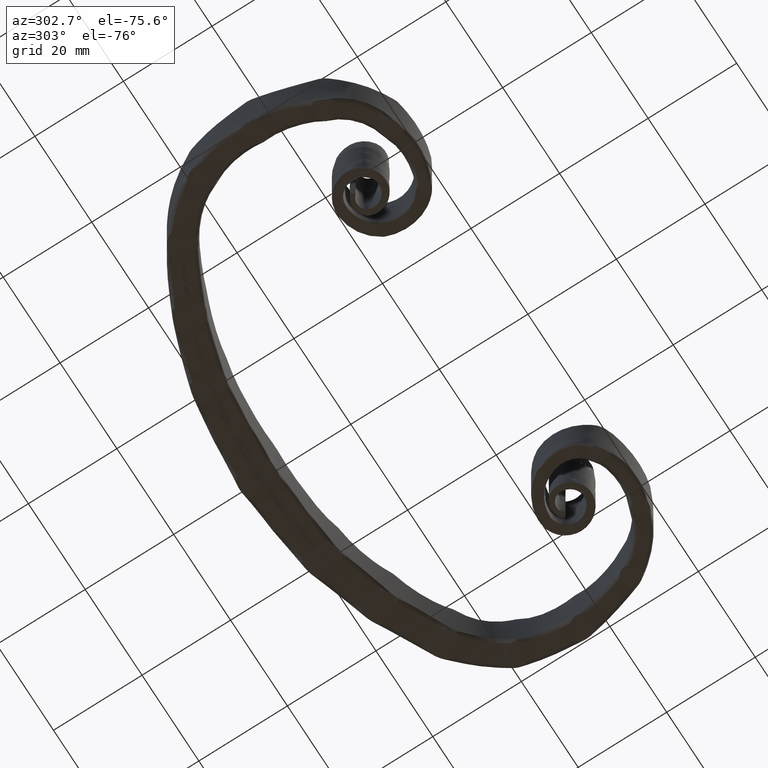
[diagram: clean part render]
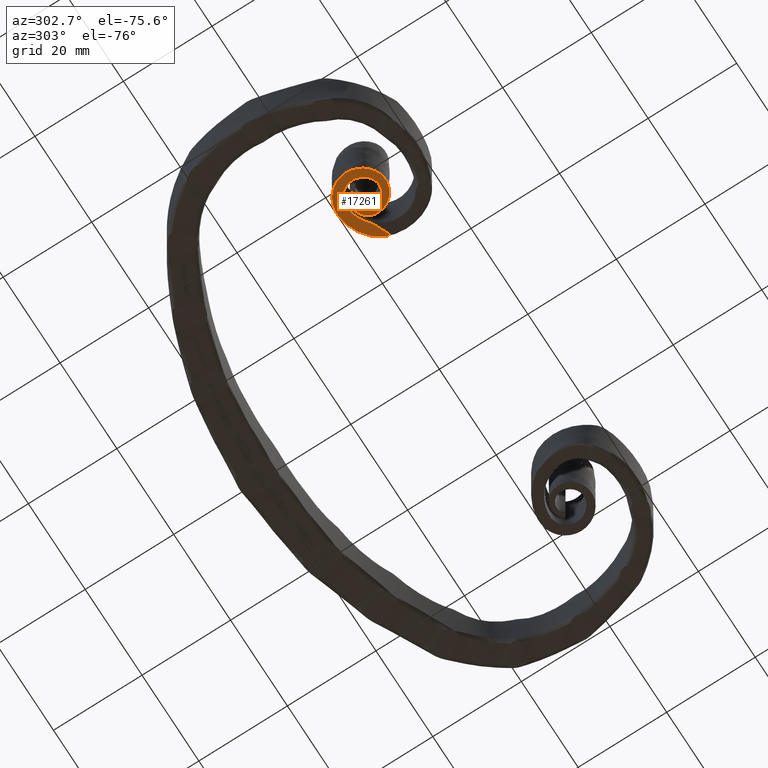
[diagram: same view with one face highlighted and labeled with its STEP entity id]
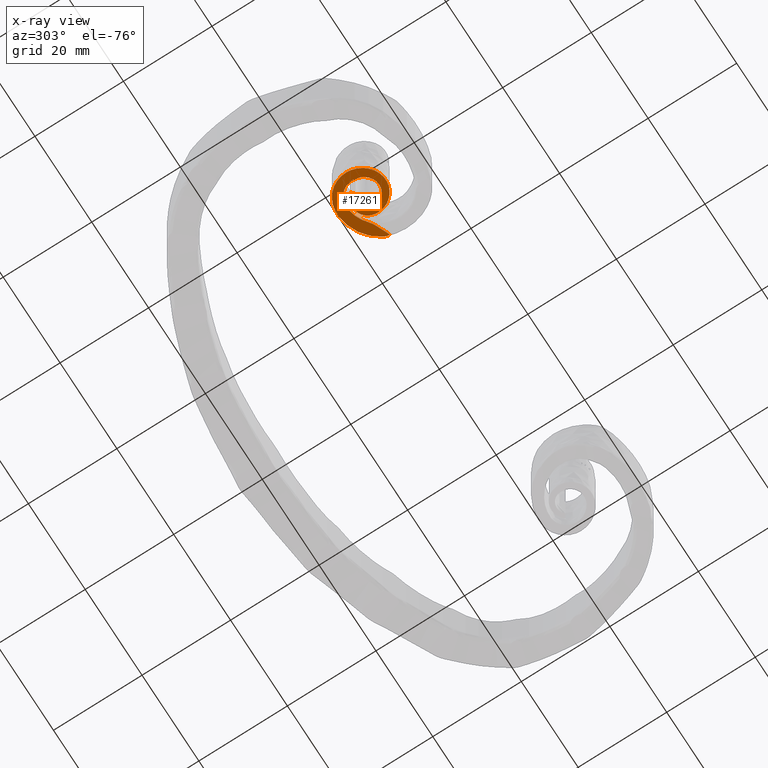
[diagram: x-ray of the same camera — body ghosted, the highlighted face saturated]
A machine part, auxiliary view. The second image highlights one B-rep face of the part: STEP entity #17261.
The next image is the same camera in x-ray: the body ghosted, the highlighted face saturated — about 0% of this face is hidden behind the body in this view.
In plain terms, the highlighted planar face has unit normal (0, 0, -1).
Its self-contained STEP definition (entity closure, byte-faithful):
#178 = EDGE_CURVE ( 'NONE', #10929, #8134, #7416, .T. ) ;
#230 = CARTESIAN_POINT ( 'NONE',  ( -0.08908066043442440518, 57.00005378626904928, -8.000000000000000000 ) ) ;
#287 = DIRECTION ( 'NONE',  ( -0.003666949966904749485, 0.9999932767163688396, 3.009265538105056689E-36 ) ) ;
#467 = CARTESIAN_POINT ( 'NONE',  ( -32.25856944422790207, 16.87443409470638400, -8.000000000000000000 ) ) ;
#544 = CARTESIAN_POINT ( 'NONE',  ( -40.69878557663527374, 17.59735655667718035, -8.000000000000000000 ) ) ;
#602 = CARTESIAN_POINT ( 'NONE',  ( -37.29396824702548230, 8.795511964063612353, -7.999999999999996447 ) ) ;
#667 = CARTESIAN_POINT ( 'NONE',  ( -41.54310349710515027, 15.45983889715169646, -8.000000000000001776 ) ) ;
#671 = CARTESIAN_POINT ( 'NONE',  ( -33.12092747893230893, 12.77025911770156341, -8.000000000000001776 ) ) ;
#726 = CARTESIAN_POINT ( 'NONE',  ( -40.07299792295289365, 10.42061540478124471, -8.000000000000000000 ) ) ;
#730 = CARTESIAN_POINT ( 'NONE',  ( -39.66832573627871028, 13.65706170450698842, -8.000000000000003553 ) ) ;
#759 = CARTESIAN_POINT ( 'NONE',  ( -26.88274877625010717, 14.09426066672529920, -8.000000000000000000 ) ) ;
#769 = B_SPLINE_CURVE_WITH_KNOTS ( 'NONE', 3,
 ( #8151, #1240, #2556, #13476, #17674, #9517, #17620, #8204, #16125, #12155 ),
 .UNSPECIFIED., .F., .F.,
 ( 4, 2, 2, 2, 4 ),
 ( 1.424164657854845069E-16, 0.001263626459893464572, 0.001895439689840117386, 0.002211346304813447804, 0.002527252919786775187 ),
 .UNSPECIFIED. ) ;
#785 = CARTESIAN_POINT ( 'NONE',  ( -36.76829308516977335, 16.66315875257708257, -8.000000000000001776 ) ) ;
#789 = CARTESIAN_POINT ( 'NONE',  ( -35.30641824463872780, 15.95577192689821189, -7.999999999999998224 ) ) ;
#1214 = VERTEX_POINT ( 'NONE', #2503 ) ;
#1240 = CARTESIAN_POINT ( 'NONE',  ( -31.89738211699978621, 16.65704812310941563, -8.000000000000000000 ) ) ;
#1976 = CARTESIAN_POINT ( 'NONE',  ( -34.64805846735739436, 20.19684137922912015, -7.999999999999996447 ) ) ;
#1981 = CARTESIAN_POINT ( 'NONE',  ( -36.70445704753899463, 15.47112916287694162, -7.999999999999998224 ) ) ;
#2041 = CARTESIAN_POINT ( 'NONE',  ( -33.23843150349720332, 9.911228828628557253, -7.999999999999998224 ) ) ;
#2045 = CARTESIAN_POINT ( 'NONE',  ( -32.25856944422790207, 16.87443409470638400, -8.000000000000000000 ) ) ;
#2104 = CARTESIAN_POINT ( 'NONE',  ( -32.53948916794604429, 10.69696962236119120, -8.000000000000005329 ) ) ;
#2109 = CARTESIAN_POINT ( 'NONE',  ( -38.23653495595501539, 11.09257442751474798, -7.999999999999998224 ) ) ;
#2164 = CARTESIAN_POINT ( 'NONE',  ( -41.22813723574261502, 12.25138290077110703, -8.000000000000000000 ) ) ;
#2200 = CARTESIAN_POINT ( 'NONE',  ( -26.92952164726990105, 14.00869037656862837, -8.000000000000000000 ) ) ;
#2206 = DIRECTION ( 'NONE',  ( -0.7937189455147504180, 0.6082846665262511276, -1.340815442741007443E-18 ) ) ;
#2467 = CARTESIAN_POINT ( 'NONE',  ( -36.98076649216176293, 10.42395965860306184, -7.999999999999996447 ) ) ;
#2503 = CARTESIAN_POINT ( 'NONE',  ( -27.08167943762045127, 13.99227973937335356, -8.000000000000001776 ) ) ;
#2556 = CARTESIAN_POINT ( 'NONE',  ( -31.55506545202332092, 16.41035395649203821, -8.000000000000001776 ) ) ;
#2879 = CARTESIAN_POINT ( 'NONE',  ( -37.05660421343006306, 15.10980932964934631, -8.000000000000000000 ) ) ;
#2900 = EDGE_CURVE ( 'NONE', #9216, #1214, #12928, .T. ) ;
#3392 = CARTESIAN_POINT ( 'NONE',  ( -39.92552931002652628, 18.55319526616785097, -8.000000000000003553 ) ) ;
#3395 = CARTESIAN_POINT ( 'NONE',  ( -34.82753805589601370, 15.90804948105585481, -8.000000000000000000 ) ) ;
#3489 = CARTESIAN_POINT ( 'NONE',  ( -27.05189557444801807, 13.97886836634643437, -7.999999999999998224 ) ) ;
#3516 = CARTESIAN_POINT ( 'NONE',  ( -28.82761687287188224, 17.51310523268768193, -8.000000000000000000 ) ) ;
#4468 = ORIENTED_EDGE ( 'NONE', *, *, #11048, .T. ) ;
#4646 = CARTESIAN_POINT ( 'NONE',  ( -41.23310572174830924, 16.55389050490008174, -8.000000000000000000 ) ) ;
#4703 = CARTESIAN_POINT ( 'NONE',  ( -32.80115351104748811, 19.83656960263194335, -8.000000000000003553 ) ) ;
#4708 = CARTESIAN_POINT ( 'NONE',  ( -36.27167455857600942, 10.32670764456760004, -8.000000000000001776 ) ) ;
#4762 = CARTESIAN_POINT ( 'NONE',  ( -33.35725232938546725, 12.12599675229050611, -7.999999999999994671 ) ) ;
#4794 = CARTESIAN_POINT ( 'NONE',  ( -27.01874261044580905, 13.97006906156308936, -8.000000000000000000 ) ) ;
#4816 = CARTESIAN_POINT ( 'NONE',  ( -36.22758531353123601, 20.26091107306055861, -8.000000000000000000 ) ) ;
#4821 = CARTESIAN_POINT ( 'NONE',  ( -34.23350454575283663, 11.02182457681279892, -7.999999999999998224 ) ) ;
#5007 = EDGE_CURVE ( 'NONE', #10929, #9216, #769, .T. ) ;
#5385 = ORIENTED_EDGE ( 'NONE', *, *, #178, .T. ) ;
#5943 = CARTESIAN_POINT ( 'NONE',  ( -32.05567494935591810, 11.58293565416448345, -7.999999999999994671 ) ) ;
#5947 = B_SPLINE_CURVE_WITH_KNOTS ( 'NONE', 3,
 ( #8813, #14264, #12961, #3516, #7391, #4703, #1976, #4816, #14082, #17034, #3392, #544, #4646, #667, #6063, #8877, #2164, #15653, #726, #8939, #7446, #602, #10183, #10062, #14143, #2041, #2104, #5943, #10241, #11602, #6129, #15591, #15475, #6004, #16861, #7502, #7566, #15717, #785, #15531, #16918, #16976 ),
 .UNSPECIFIED., .F., .F.,
 ( 4, 1, 1, 1, 1, 1, 1, 1, 1, 1, 1, 1, 1, 1, 1, 1, 1, 1, 1, 1, 1, 1, 1, 1, 1, 1, 1, 1, 1, 1, 1, 1, 1, 1, 1, 1, 1, 1, 1, 4 ),
 ( 0.7771574592084751210, 0.7786077898924974594, 0.7913077015471751130, 0.8040339734391993565, 0.8168753163733342149, 0.8254648212622619496, 0.8338777326377696530, 0.8417374725438308003, 0.8476900748719412571, 0.8536739752493338607, 0.8596723398868704180, 0.8657199806911439754, 0.8711016275644573037, 0.8765218075249352481, 0.8819648881070170088, 0.8874158191034282606, 0.8929086252330729057, 0.8984123592610701037, 0.9039583099793584431, 0.9093979284498575621, 0.9147238045027490383, 0.9201009716574970465, 0.9255066814464790736, 0.9309167109032308041, 0.9363858535653976078, 0.9418642572720302697, 0.9467582194043550059, 0.9516941636778122326, 0.9566337969864757707, 0.9615526416564625922, 0.9662532242854789954, 0.9709803087413948486, 0.9745289622775291649, 0.9781300819601848051, 0.9817482887861940233, 0.9853504273271718183, 0.9889700796270624039, 0.9926337205710183964, 0.9963172147212209229, 1.000000000000000000 ),
 .UNSPECIFIED. ) ;
#6004 = CARTESIAN_POINT ( 'NONE',  ( -33.31289801666378736, 16.54543258136907724, -8.000000000000001776 ) ) ;
#6008 = CARTESIAN_POINT ( 'NONE',  ( -35.55088652406919891, 10.39255612426504705, -7.999999999999998224 ) ) ;
#6063 = CARTESIAN_POINT ( 'NONE',  ( -41.63719562352542169, 14.37928421697234604, -7.999999999999996447 ) ) ;
#6068 = CARTESIAN_POINT ( 'NONE',  ( -39.59227957550186972, 15.10768060408133984, -8.000000000000001776 ) ) ;
#6129 = CARTESIAN_POINT ( 'NONE',  ( -31.77989728447012396, 14.40275918467498961, -7.999999999999998224 ) ) ;
#6132 = CARTESIAN_POINT ( 'NONE',  ( -39.34910798959906231, 15.80723491737672326, -8.000000000000000000 ) ) ;
#6190 = CARTESIAN_POINT ( 'NONE',  ( -33.94494347866242379, 15.52457999889023732, -8.000000000000001776 ) ) ;
#6217 = CARTESIAN_POINT ( 'NONE',  ( -26.87694927415090262, 14.35358460205364040, -7.999999999999998224 ) ) ;
#6223 = VERTEX_POINT ( 'NONE', #10194 ) ;
#6270 = LINE ( 'NONE', #11647, #14986 ) ;
#6418 = EDGE_CURVE ( 'NONE', #1214, #11666, #10691, .T. ) ;
#6980 = ORIENTED_EDGE ( 'NONE', *, *, #2900, .F. ) ;
#7391 = CARTESIAN_POINT ( 'NONE',  ( -30.79790288862709957, 18.99454615593504414, -7.999999999999998224 ) ) ;
#7395 = CARTESIAN_POINT ( 'NONE',  ( -36.26424687908592404, 15.72917085306321461, -8.000000000000001776 ) ) ;
#7416 = B_SPLINE_CURVE_WITH_KNOTS ( 'NONE', 3,
 ( #2045, #14398, #15658, #7507, #12848, #17038, #8944, #10246, #10122, #6132, #6068, #13028, #730, #15720, #10597, #14149, #2109, #7632, #2467, #4708, #6008, #11606, #4821, #17159, #4762, #671, #12964, #8881, #14269, #15596, #6190, #8818, #3395, #789, #14209, #7395, #1981, #8756, #11549 ),
 .UNSPECIFIED., .F., .F.,
 ( 4, 1, 1, 1, 1, 1, 1, 1, 1, 1, 1, 1, 1, 1, 1, 1, 1, 1, 1, 1, 1, 1, 1, 1, 1, 1, 1, 1, 1, 1, 1, 1, 1, 1, 1, 1, 4 ),
 ( 0.8055974231361461291, 0.8168753163733342149, 0.8254648212622619496, 0.8338777326377696530, 0.8417374725438308003, 0.8476900748719412571, 0.8536739752493338607, 0.8596723398868704180, 0.8657199806911439754, 0.8711016275644573037, 0.8765218075249352481, 0.8819648881070170088, 0.8874158191034282606, 0.8929086252330729057, 0.8984123592610701037, 0.9039583099793584431, 0.9093979284498575621, 0.9147238045027490383, 0.9201009716574970465, 0.9255066814464790736, 0.9309167109032308041, 0.9363858535653976078, 0.9418642572720302697, 0.9467582194043550059, 0.9516941636778122326, 0.9566337969864757707, 0.9615526416564625922, 0.9662532242854789954, 0.9709803087413948486, 0.9745289622775291649, 0.9781300819601848051, 0.9817482887861940233, 0.9853504273271718183, 0.9889700796270624039, 0.9926337205710183964, 0.9963172147212209229, 1.000000000000000000 ),
 .UNSPECIFIED. ) ;
#7446 = CARTESIAN_POINT ( 'NONE',  ( -38.34741465360702506, 9.140568682587430160, -8.000000000000001776 ) ) ;
#7502 = CARTESIAN_POINT ( 'NONE',  ( -34.65891565540755437, 17.04101978521302030, -8.000000000000000000 ) ) ;
#7507 = CARTESIAN_POINT ( 'NONE',  ( -34.91065796550991962, 17.88484974976997322, -7.999999999999996447 ) ) ;
#7566 = CARTESIAN_POINT ( 'NONE',  ( -35.38746037327172189, 17.07127973104637420, -7.999999999999998224 ) ) ;
#7632 = CARTESIAN_POINT ( 'NONE',  ( -37.62884700156263307, 10.68042351329262374, -8.000000000000001776 ) ) ;
#8134 = VERTEX_POINT ( 'NONE', #2879 ) ;
#8151 = CARTESIAN_POINT ( 'NONE',  ( -32.25856944422790207, 16.87443409470638400, -8.000000000000000000 ) ) ;
#8204 = CARTESIAN_POINT ( 'NONE',  ( -30.39201748146087567, 15.50513496903768917, -8.000000000000000000 ) ) ;
#8387 = DIRECTION ( 'NONE',  ( 1.694043115214179254E-18, 6.212013110395918427E-21, -1.000000000000000000 ) ) ;
#8756 = CARTESIAN_POINT ( 'NONE',  ( -36.93922935566527599, 15.23024154703032451, -8.000000000000000000 ) ) ;
#8813 = CARTESIAN_POINT ( 'NONE',  ( -27.23487141740703521, 15.30542653066887837, -8.000000000000000000 ) ) ;
#8818 = CARTESIAN_POINT ( 'NONE',  ( -34.36416681380985239, 15.76122412153623387, -8.000000000000001776 ) ) ;
#8877 = CARTESIAN_POINT ( 'NONE',  ( -41.53435999411437507, 13.29939391619677558, -8.000000000000003553 ) ) ;
#8881 = CARTESIAN_POINT ( 'NONE',  ( -33.05837237034327103, 14.12907286212207048, -7.999999999999998224 ) ) ;
#8939 = CARTESIAN_POINT ( 'NONE',  ( -39.27567106664123742, 9.703622873740007648, -7.999999999999998224 ) ) ;
#8944 = CARTESIAN_POINT ( 'NONE',  ( -37.79397242525386957, 17.50201094131653790, -7.999999999999998224 ) ) ;
#9216 = VERTEX_POINT ( 'NONE', #16735 ) ;
#9236 = CARTESIAN_POINT ( 'NONE',  ( -73.94433201917266274, 35.09405928904120486, -8.000000000000030198 ) ) ;
#9339 = VECTOR ( 'NONE', #16146, 999.9999999999998863 ) ;
#9517 = CARTESIAN_POINT ( 'NONE',  ( -30.64548236717455865, 15.69315909958648980, -8.000000000000000000 ) ) ;
#10062 = CARTESIAN_POINT ( 'NONE',  ( -35.13751597110064750, 8.872359412367799791, -7.999999999999998224 ) ) ;
#10122 = CARTESIAN_POINT ( 'NONE',  ( -38.95765234557162415, 16.47334611675310612, -8.000000000000000000 ) ) ;
#10183 = CARTESIAN_POINT ( 'NONE',  ( -36.21187680046245561, 8.713157974718805932, -8.000000000000001776 ) ) ;
#10194 = CARTESIAN_POINT ( 'NONE',  ( -37.85032315894481059, 15.71809399617559500, -8.000000000000000000 ) ) ;
#10241 = CARTESIAN_POINT ( 'NONE',  ( -31.77253835830676820, 12.50235159414643960, -8.000000000000001776 ) ) ;
#10246 = CARTESIAN_POINT ( 'NONE',  ( -38.42882680212537849, 17.05135936352359138, -8.000000000000003553 ) ) ;
#10275 = CARTESIAN_POINT ( 'NONE',  ( -27.10631255861733635, 15.08385448682593655, -8.000000000000000000 ) ) ;
#10466 = ORIENTED_EDGE ( 'NONE', *, *, #5007, .F. ) ;
#10519 = ORIENTED_EDGE ( 'NONE', *, *, #13109, .F. ) ;
#10597 = CARTESIAN_POINT ( 'NONE',  ( -39.20040579822470761, 12.25418721150844270, -8.000000000000000000 ) ) ;
#10691 = B_SPLINE_CURVE_WITH_KNOTS ( 'NONE', 3,
 ( #11758, #3489, #4794, #17132, #2200, #759, #17250, #6217, #15689, #15749, #10275, #15928 ),
 .UNSPECIFIED., .F., .F.,
 ( 4, 2, 2, 2, 2, 4 ),
 ( 0.000000000000000000, 9.728877796256063125E-05, 0.0001945775559251212625, 0.0003891551118502471329, 0.0007783102237004937236, 0.001556620447400989182 ),
 .UNSPECIFIED. ) ;
#10929 = VERTEX_POINT ( 'NONE', #467 ) ;
#11048 = EDGE_CURVE ( 'NONE', #8134, #6223, #6270, .T. ) ;
#11549 = CARTESIAN_POINT ( 'NONE',  ( -37.05660421343006306, 15.10980932964934631, -8.000000000000000000 ) ) ;
#11602 = CARTESIAN_POINT ( 'NONE',  ( -31.68619612710438105, 13.46557433776032831, -8.000000000000000000 ) ) ;
#11606 = CARTESIAN_POINT ( 'NONE',  ( -34.86503995544900647, 10.62503491098004282, -8.000000000000000000 ) ) ;
#11647 = CARTESIAN_POINT ( 'NONE',  ( -37.05660421343006306, 15.10980932964934631, -8.000000000000000000 ) ) ;
#11666 = VERTEX_POINT ( 'NONE', #13446 ) ;
#11758 = CARTESIAN_POINT ( 'NONE',  ( -27.08167943762045127, 13.99227973937335356, -8.000000000000001776 ) ) ;
#12155 = CARTESIAN_POINT ( 'NONE',  ( -30.20928721317084253, 15.40060995889387740, -8.000000000000003553 ) ) ;
#12848 = CARTESIAN_POINT ( 'NONE',  ( -36.09689255835102983, 17.97890373663030772, -8.000000000000000000 ) ) ;
#12928 = LINE ( 'NONE', #9236, #9339 ) ;
#12961 = CARTESIAN_POINT ( 'NONE',  ( -27.74813319242282006, 16.16482944758803697, -8.000000000000000000 ) ) ;
#12964 = CARTESIAN_POINT ( 'NONE',  ( -33.02183117748645458, 13.44526017974104803, -8.000000000000000000 ) ) ;
#13028 = CARTESIAN_POINT ( 'NONE',  ( -39.69701760489463283, 14.38961435650811715, -7.999999999999996447 ) ) ;
#13109 = EDGE_CURVE ( 'NONE', #11666, #6223, #5947, .T. ) ;
#13446 = CARTESIAN_POINT ( 'NONE',  ( -27.23487141740703521, 15.30542653066887837, -8.000000000000000000 ) ) ;
#13476 = CARTESIAN_POINT ( 'NONE',  ( -31.05694369081602346, 16.02172357063502517, -7.999999999999998224 ) ) ;
#13949 = PLANE ( 'NONE',  #16598 ) ;
#14082 = CARTESIAN_POINT ( 'NONE',  ( -37.77096912026670594, 19.93863347626908222, -8.000000000000001776 ) ) ;
#14143 = CARTESIAN_POINT ( 'NONE',  ( -34.12072512214457021, 9.284771891428439616, -8.000000000000000000 ) ) ;
#14149 = CARTESIAN_POINT ( 'NONE',  ( -38.77688029305250694, 11.63386227179553067, -8.000000000000000000 ) ) ;
#14209 = CARTESIAN_POINT ( 'NONE',  ( -35.79103990793135637, 15.89561008266718289, -8.000000000000000000 ) ) ;
#14264 = CARTESIAN_POINT ( 'NONE',  ( -27.28159268902190959, 15.38595095146811076, -8.000000000000000000 ) ) ;
#14269 = CARTESIAN_POINT ( 'NONE',  ( -33.24108485082397380, 14.70733998012455324, -8.000000000000003553 ) ) ;
#14398 = CARTESIAN_POINT ( 'NONE',  ( -32.71929318366549921, 17.15172753826113805, -8.000000000000000000 ) ) ;
#14986 = VECTOR ( 'NONE', #2206, 1000.000000000000114 ) ;
#15475 = CARTESIAN_POINT ( 'NONE',  ( -32.67436487606764217, 16.04269880052150299, -7.999999999999998224 ) ) ;
#15531 = CARTESIAN_POINT ( 'NONE',  ( -37.37364346471554200, 16.26345804531927897, -7.999999999999998224 ) ) ;
#15591 = CARTESIAN_POINT ( 'NONE',  ( -32.13596860398281052, 15.34098949990374017, -8.000000000000003553 ) ) ;
#15596 = CARTESIAN_POINT ( 'NONE',  ( -33.56136608717459069, 15.18442039513396402, -7.999999999999998224 ) ) ;
#15653 = CARTESIAN_POINT ( 'NONE',  ( -40.73852096950324153, 11.28658403337074745, -8.000000000000000000 ) ) ;
#15658 = CARTESIAN_POINT ( 'NONE',  ( -33.58989399514089058, 17.55515651896380547, -8.000000000000003553 ) ) ;
#15689 = CARTESIAN_POINT ( 'NONE',  ( -26.90225024418922928, 14.48137791587156187, -7.999999999999998224 ) ) ;
#15717 = CARTESIAN_POINT ( 'NONE',  ( -36.10362127858420678, 16.93984530109028341, -8.000000000000000000 ) ) ;
#15720 = CARTESIAN_POINT ( 'NONE',  ( -39.50294519289270312, 12.94139072795001510, -8.000000000000000000 ) ) ;
#15749 = CARTESIAN_POINT ( 'NONE',  ( -27.00166993303595930, 14.84950174179921945, -8.000000000000003553 ) ) ;
#15802 = ORIENTED_EDGE ( 'NONE', *, *, #6418, .F. ) ;
#15822 = EDGE_LOOP ( 'NONE', ( #6980, #10466, #5385, #4468, #10519, #15802 ) ) ;
#15928 = CARTESIAN_POINT ( 'NONE',  ( -27.23487141740703521, 15.30542653066887837, -8.000000000000000000 ) ) ;
#16036 = FACE_OUTER_BOUND ( 'NONE', #15822, .T. ) ;
#16125 = CARTESIAN_POINT ( 'NONE',  ( -30.30631823287412629, 15.44430204789150096, -8.000000000000001776 ) ) ;
#16146 = DIRECTION ( 'NONE',  ( 0.9118225553046362952, -0.4105844951258187381, 5.400108031917705932E-16 ) ) ;
#16598 = AXIS2_PLACEMENT_3D ( 'NONE', #230, #8387, #287 ) ;
#16735 = CARTESIAN_POINT ( 'NONE',  ( -30.20928721317084253, 15.40060995889387740, -8.000000000000003553 ) ) ;
#16861 = CARTESIAN_POINT ( 'NONE',  ( -33.96051779992166786, 16.86106865015544187, -8.000000000000001776 ) ) ;
#16918 = CARTESIAN_POINT ( 'NONE',  ( -37.69144012159890167, 15.89987034963934143, -8.000000000000000000 ) ) ;
#16976 = CARTESIAN_POINT ( 'NONE',  ( -37.85032315894481059, 15.71809399617559500, -8.000000000000000000 ) ) ;
#17034 = CARTESIAN_POINT ( 'NONE',  ( -38.97156987973699671, 19.31740444329371797, -7.999999999999998224 ) ) ;
#17038 = CARTESIAN_POINT ( 'NONE',  ( -37.00704724890688624, 17.84657035615822451, -8.000000000000001776 ) ) ;
#17132 = CARTESIAN_POINT ( 'NONE',  ( -26.95501575144127315, 13.98408732859320125, -8.000000000000001776 ) ) ;
#17159 = CARTESIAN_POINT ( 'NONE',  ( -33.72604498492352576, 11.53262203034200617, -8.000000000000005329 ) ) ;
#17250 = CARTESIAN_POINT ( 'NONE',  ( -26.87788592738206006, 14.16163028488524844, -8.000000000000001776 ) ) ;
#17261 = ADVANCED_FACE ( 'NONE', ( #16036 ), #13949, .T. ) ;
#17620 = CARTESIAN_POINT ( 'NONE',  ( -30.56235613298959919, 15.62840397081093435, -8.000000000000000000 ) ) ;
#17674 = CARTESIAN_POINT ( 'NONE',  ( -30.89342200212534095, 15.88892378898432867, -8.000000000000000000 ) ) ;